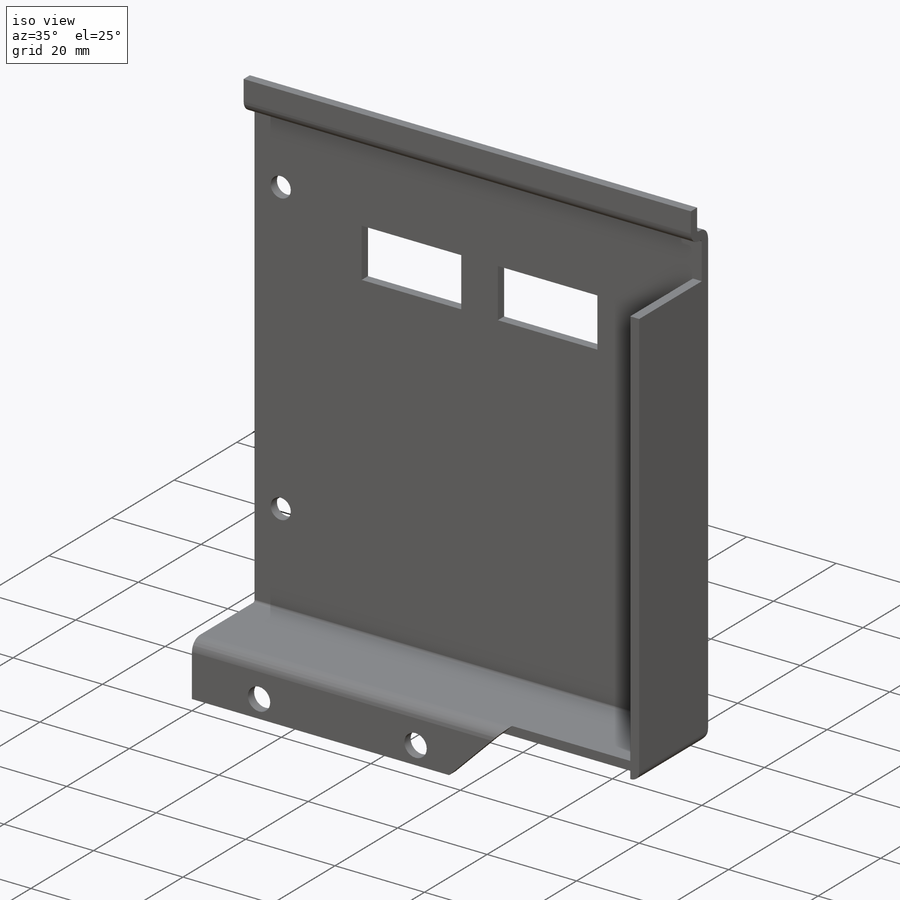
[diagram: iso view]
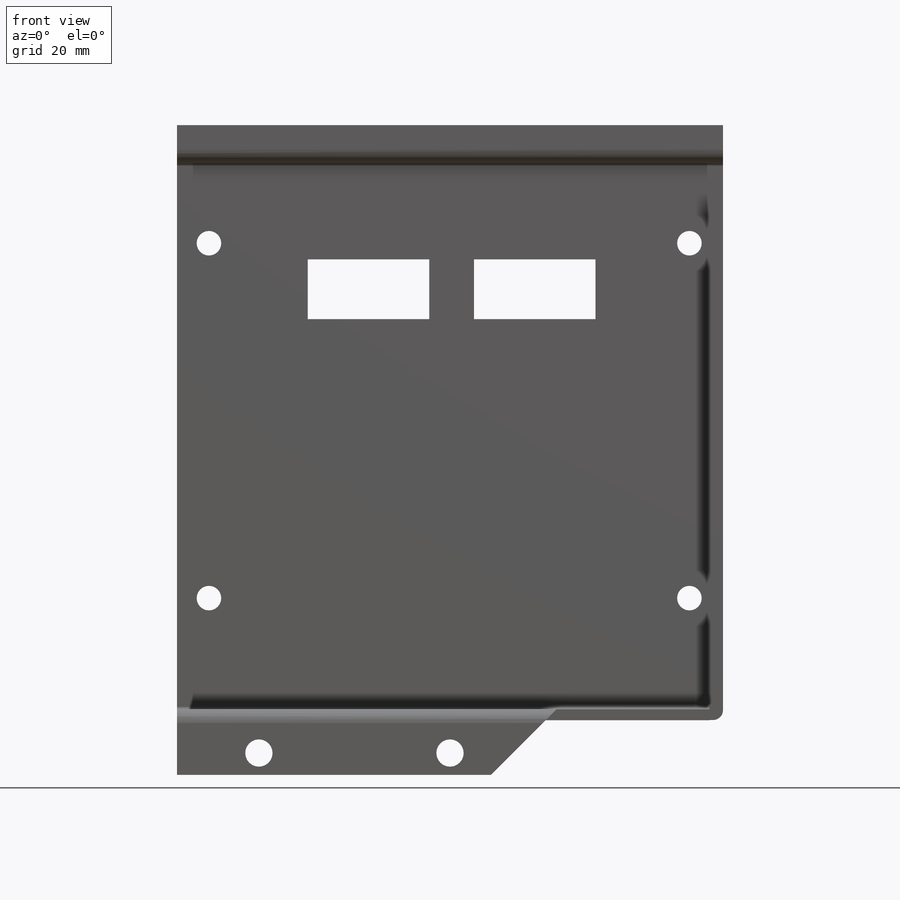
[diagram: front view]
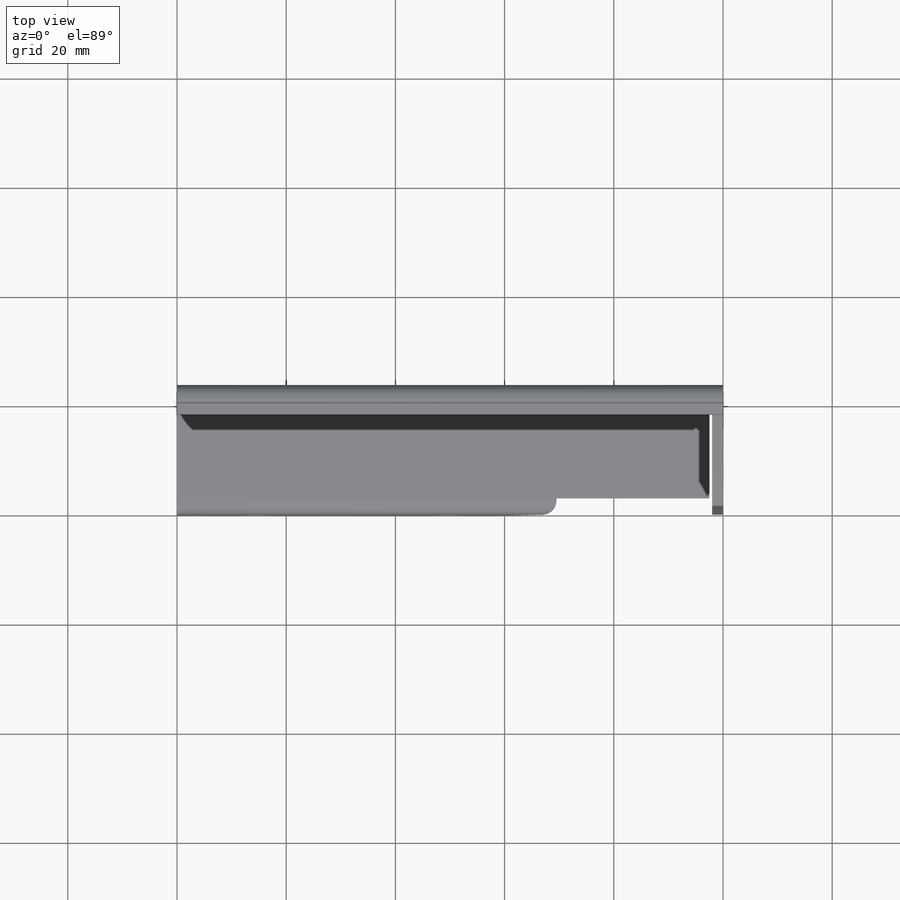
[diagram: top view]
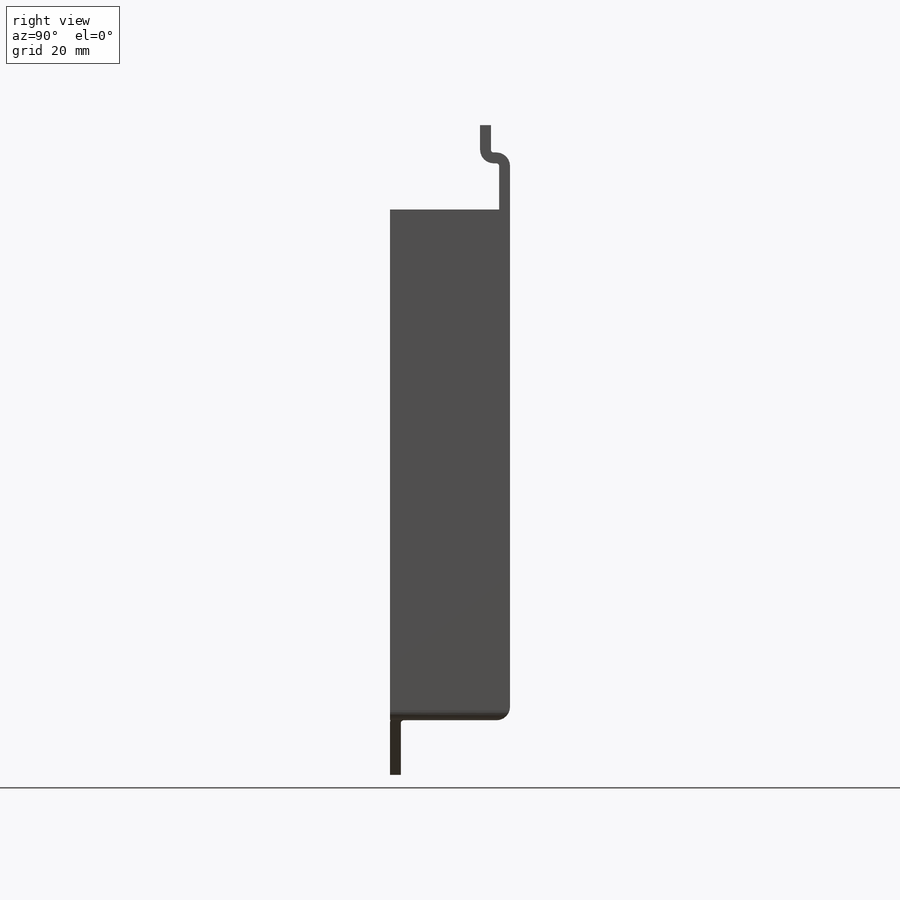
[diagram: right view]
SOLIDWORKS PART (.sldprt)
format: sldprt  version: not decoded by parser v0  size: 257,024 bytes
history: native  units: mm
features: sketch x5, cut_extrude x3, extrude x2, material x1, fillet x1 (+11 scaffold rows collapsed)
feature tree (23):
  scaffold x11  (default folders/planes/origin — collapsed)
  material  "Material <not specified>"
  sketch  "Sketch1"  dims[c1.D7=0.5mm c1.D1=100.0mm c1.D2=20.0mm c1.D3=12.0mm c1.D4=2.0mm c1.D5=3.5mm c2.D4=4.0mm c2.D6=2.0mm c2.D1=3.5mm c3.D4=5.0mm c3.D5=100.0mm c3.D2=20.0mm c3.D3=10.0mm]
  extrude  "Boss-Extrude1"  Depth=100mm
  sketch  "Sketch2"  dims[D1=2.5mm]
  cut_extrude  "Cut-Extrude1"  [1 undecoded]
  sketch  "Sketch3"  dims[D1=2.0mm D2=93.5mm]
  extrude  "Boss-Extrude2"  Depth=20mm
  sketch  "Sketch4"  dims[c1.D4=5.0mm c1.D1=15.0mm c1.D2=4.0mm c1.D3=35.0mm c1.D5=20.0mm c1.D6=~7.437622mm c2.D6=45.0deg c2.D7=6.0mm c2.D5=7.5mm]
  cut_extrude  "Cut-Extrude3"  Depth=3mm
  sketch  "Sketch5"  dims[D1=4.5mm D2=1.0mm D3=1.0mm D4=1.0mm D5=1.0mm D6=1.0mm D7=1.0mm]
  cut_extrude  "Cut-Extrude4"  Depth=5mm
  fillet  "Fillet1"  Radius=1.8mm
decode coverage: 10 of 11 modeling features carry decoded parameters
note: ~ marks probable driven/reference dimensions
note: 1 parameter value undecoded
note: suppression state not decoded; provenance and decode notes live in map.json
